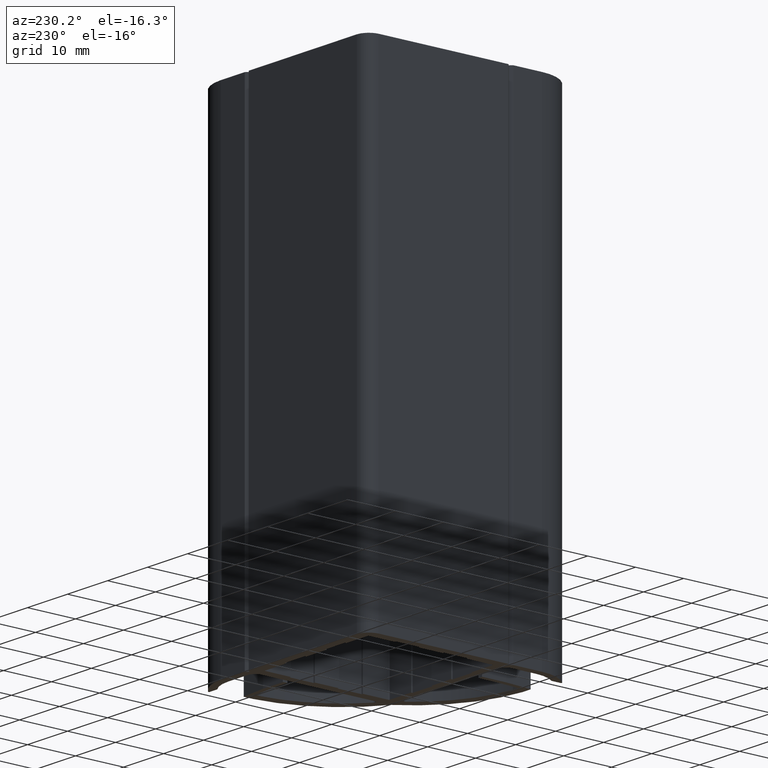
[diagram: clean part render]
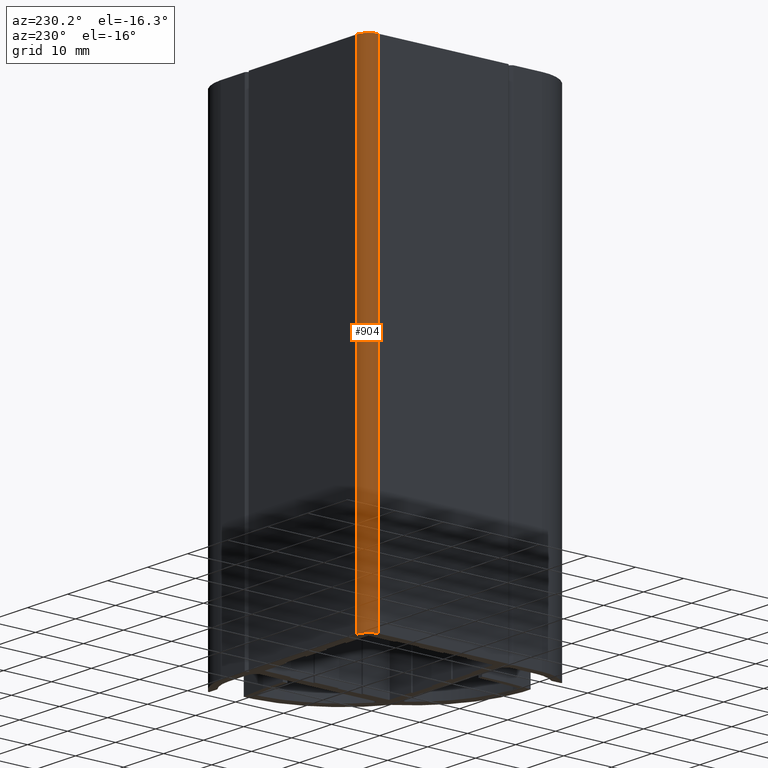
[diagram: same view with one face highlighted and labeled with its STEP entity id]
A machine part, auxiliary view. The second image highlights one B-rep face of the part: STEP entity #904.
In plain terms, the highlighted cylindrical surface (edge-blend (fillet) strip) has radius 2.5 mm, axis along (0, 0, 1).
Its self-contained STEP definition (entity closure, byte-faithful):
#846=CARTESIAN_POINT('',(2.499999999999091,15.999736090129403,-100.0));
#847=VERTEX_POINT('',#846);
#854=CARTESIAN_POINT('',(2.499999999999091,15.999736090129403,0.0));
#855=VERTEX_POINT('',#854);
#856=CARTESIAN_POINT('',(2.499999999999091,15.999736090129403,-100.0));
#857=DIRECTION('',(0.0,0.0,1.0));
#858=VECTOR('',#857,100.0);
#859=LINE('',#856,#858);
#860=EDGE_CURVE('',#847,#855,#859,.T.);
#872=CARTESIAN_POINT('',(2.499999999999091,13.499736090129403,-100.0));
#873=DIRECTION('',(0.0,0.0,1.0));
#874=DIRECTION('',(1.0,0.0,0.0));
#875=AXIS2_PLACEMENT_3D('',#872,#873,#874);
#876=CYLINDRICAL_SURFACE('',#875,2.500000000000000);
#877=CARTESIAN_POINT('',(0.0,13.499736090129403,-100.0));
#878=VERTEX_POINT('',#877);
#879=CARTESIAN_POINT('',(2.499999999999091,13.499736090129403,-100.0));
#880=DIRECTION('',(0.0,0.0,1.0));
#881=DIRECTION('',(1.0,0.0,0.0));
#882=AXIS2_PLACEMENT_3D('',#879,#880,#881);
#883=CIRCLE('',#882,2.500000000000000);
#884=EDGE_CURVE('',#847,#878,#883,.T.);
#885=ORIENTED_EDGE('',*,*,#884,.T.);
#886=CARTESIAN_POINT('',(0.0,13.499736090129403,0.0));
#887=VERTEX_POINT('',#886);
#888=CARTESIAN_POINT('',(0.0,13.499736090129403,-100.0));
#889=DIRECTION('',(0.0,0.0,1.0));
#890=VECTOR('',#889,100.0);
#891=LINE('',#888,#890);
#892=EDGE_CURVE('',#878,#887,#891,.T.);
#893=ORIENTED_EDGE('',*,*,#892,.T.);
#894=CARTESIAN_POINT('',(2.499999999999091,13.499736090129403,0.0));
#895=DIRECTION('',(0.0,0.0,1.0));
#896=DIRECTION('',(1.0,0.0,0.0));
#897=AXIS2_PLACEMENT_3D('',#894,#895,#896);
#898=CIRCLE('',#897,2.500000000000000);
#899=EDGE_CURVE('',#855,#887,#898,.T.);
#900=ORIENTED_EDGE('',*,*,#899,.F.);
#901=ORIENTED_EDGE('',*,*,#860,.F.);
#902=EDGE_LOOP('',(#885,#893,#900,#901));
#903=FACE_OUTER_BOUND('',#902,.T.);
#904=ADVANCED_FACE('',(#903),#876,.T.);